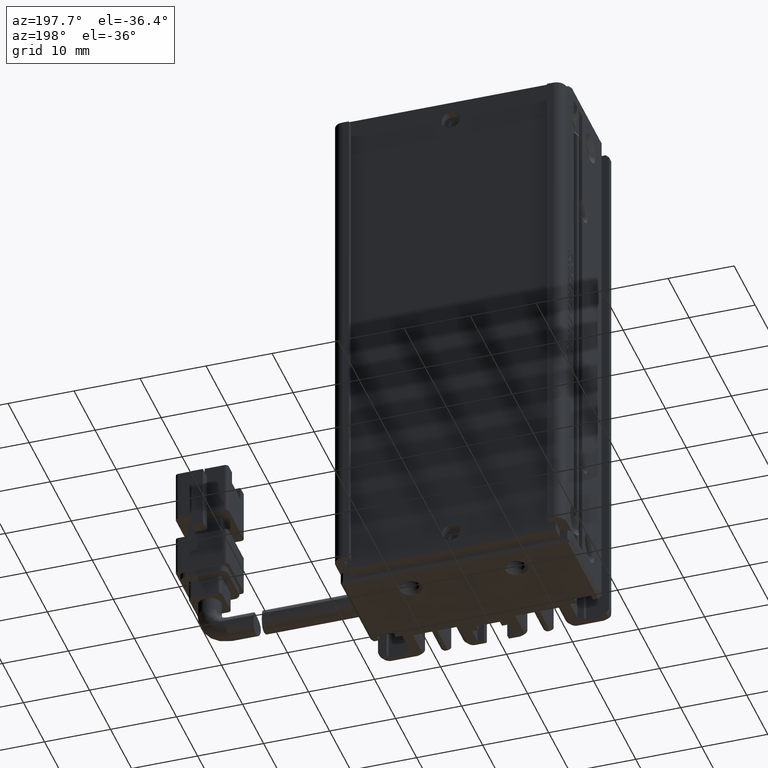
[diagram: clean part render]
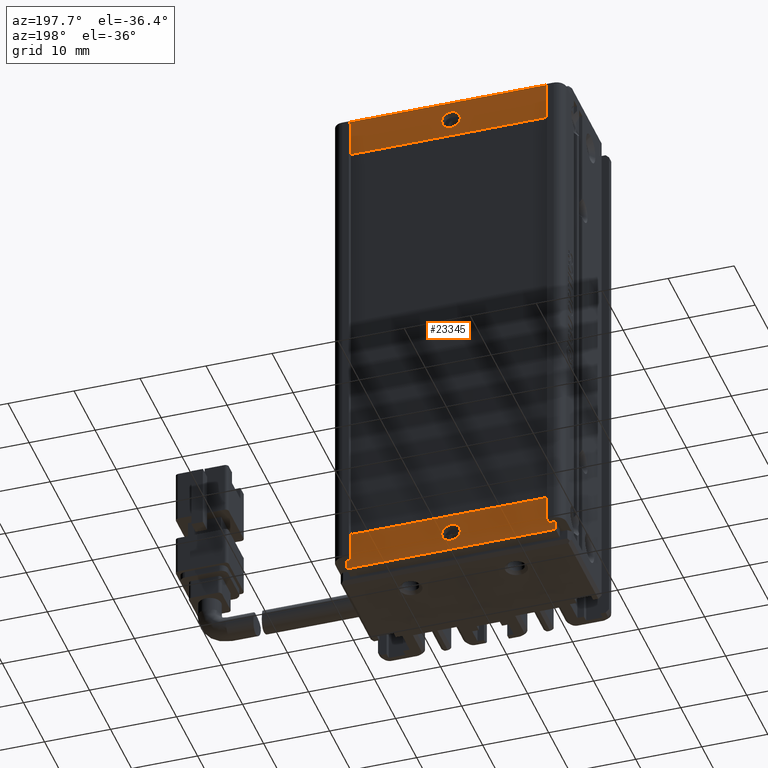
[diagram: same view with one face highlighted and labeled with its STEP entity id]
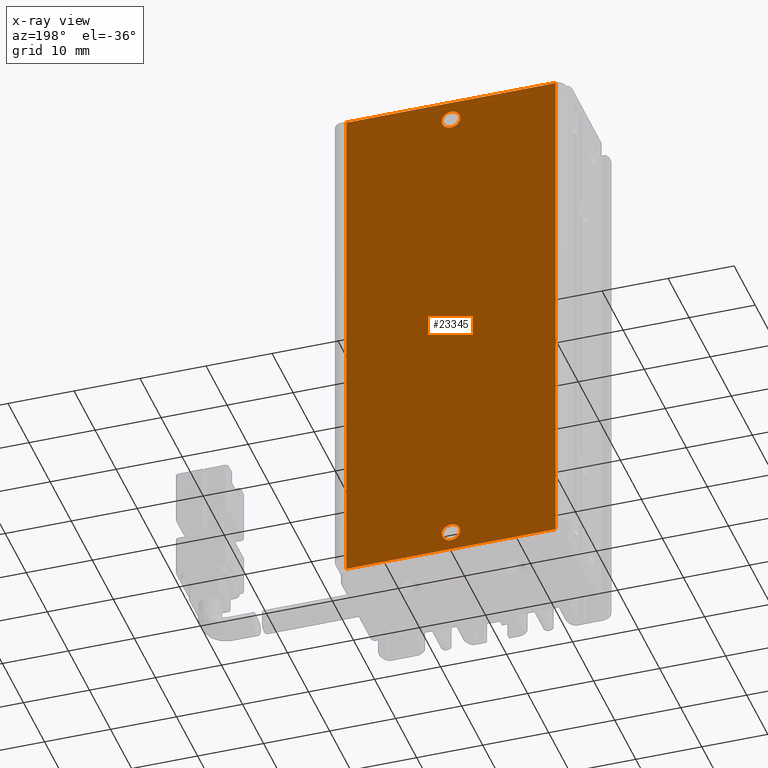
[diagram: x-ray of the same camera — body ghosted, the highlighted face saturated]
A machine part, auxiliary view. The second image highlights one B-rep face of the part: STEP entity #23345.
The next image is the same camera in x-ray: the body ghosted, the highlighted face saturated — about 0% of this face is hidden behind the body in this view.
In plain terms, the highlighted planar face has unit normal (0, 1, 0).
Its self-contained STEP definition (entity closure, byte-faithful):
#330 = CARTESIAN_POINT ( 'NONE',  ( 25.07537974683541600, 33.49073232304837700, -155.0000000000000300 ) ) ;
#935 = DIRECTION ( 'NONE',  ( -1.631319816340922500E-017, -0.0000000000000000000, 1.000000000000000000 ) ) ;
#1281 = CARTESIAN_POINT ( 'NONE',  ( 40.92537974683541100, 33.49073232304837700, -76.60000000000000900 ) ) ;
#1443 = ORIENTED_EDGE ( 'NONE', *, *, #5145, .T. ) ;
#2185 = ORIENTED_EDGE ( 'NONE', *, *, #14618, .T. ) ;
#2336 = AXIS2_PLACEMENT_3D ( 'NONE', #26504, #23533, #32022 ) ;
#2883 = DIRECTION ( 'NONE',  ( 0.0000000000000000000, 0.0000000000000000000, 1.000000000000000000 ) ) ;
#3335 = LINE ( 'NONE', #22120, #29895 ) ;
#3593 = VERTEX_POINT ( 'NONE', #7690 ) ;
#4045 = FACE_BOUND ( 'NONE', #15093, .T. ) ;
#4791 = VECTOR ( 'NONE', #5916, 1000.000000000000000 ) ;
#5145 = EDGE_CURVE ( 'NONE', #17059, #15080, #6583, .T. ) ;
#5250 = CARTESIAN_POINT ( 'NONE',  ( 25.07537974683541600, 33.49073232304837700, -155.0000000000000300 ) ) ;
#5355 = EDGE_CURVE ( 'NONE', #38021, #24096, #28516, .T. ) ;
#5431 = LINE ( 'NONE', #7168, #10886 ) ;
#5916 = DIRECTION ( 'NONE',  ( 5.204170427930418800E-017, -0.0000000000000000000, -1.000000000000000000 ) ) ;
#6583 = CIRCLE ( 'NONE', #23786, 1.400000000000012300 ) ;
#7168 = CARTESIAN_POINT ( 'NONE',  ( 25.07537974683541600, 33.49073232304837700, -75.00000000000001400 ) ) ;
#7454 = ORIENTED_EDGE ( 'NONE', *, *, #28423, .T. ) ;
#7690 = CARTESIAN_POINT ( 'NONE',  ( 40.92537974683541100, 33.49073232304837700, -79.40000000000000600 ) ) ;
#8518 = CARTESIAN_POINT ( 'NONE',  ( 56.77537974683541200, 33.49073232304837700, -75.00000000000001400 ) ) ;
#8586 = CARTESIAN_POINT ( 'NONE',  ( 40.92537974683541100, 33.49073232304837700, -78.00000000000001400 ) ) ;
#9674 = DIRECTION ( 'NONE',  ( -0.0000000000000000000, -1.000000000000000000, -0.0000000000000000000 ) ) ;
#10886 = VECTOR ( 'NONE', #935, 1000.000000000000000 ) ;
#11278 = CARTESIAN_POINT ( 'NONE',  ( 56.77537974683541200, 33.49073232304837700, -75.00000000000001400 ) ) ;
#12044 = ORIENTED_EDGE ( 'NONE', *, *, #5355, .T. ) ;
#12277 = DIRECTION ( 'NONE',  ( 0.0000000000000000000, 0.0000000000000000000, 1.000000000000000000 ) ) ;
#12505 = CARTESIAN_POINT ( 'NONE',  ( 40.92537974683541800, 33.49073232304837700, -153.4000000000000300 ) ) ;
#12824 = ORIENTED_EDGE ( 'NONE', *, *, #24520, .T. ) ;
#13050 = DIRECTION ( 'NONE',  ( 1.000000000000000000, 0.0000000000000000000, 1.387778780781445400E-016 ) ) ;
#13790 = ORIENTED_EDGE ( 'NONE', *, *, #14248, .T. ) ;
#14248 = EDGE_CURVE ( 'NONE', #21273, #3593, #18898, .T. ) ;
#14531 = DIRECTION ( 'NONE',  ( -1.387778780781445400E-016, 0.0000000000000000000, 1.000000000000000000 ) ) ;
#14549 = FACE_OUTER_BOUND ( 'NONE', #31821, .T. ) ;
#14594 = CARTESIAN_POINT ( 'NONE',  ( 40.92537974683541800, 33.49073232304837700, -150.6000000000000200 ) ) ;
#14618 = EDGE_CURVE ( 'NONE', #30730, #35535, #3335, .T. ) ;
#14655 = PLANE ( 'NONE',  #17272 ) ;
#15080 = VERTEX_POINT ( 'NONE', #12505 ) ;
#15093 = EDGE_LOOP ( 'NONE', ( #13790, #36008 ) ) ;
#17015 = EDGE_CURVE ( 'NONE', #3593, #21273, #30860, .T. ) ;
#17059 = VERTEX_POINT ( 'NONE', #14594 ) ;
#17272 = AXIS2_PLACEMENT_3D ( 'NONE', #8518, #37677, #14531 ) ;
#17458 = EDGE_CURVE ( 'NONE', #15080, #17059, #19299, .T. ) ;
#18669 = AXIS2_PLACEMENT_3D ( 'NONE', #8586, #23179, #29353 ) ;
#18898 = CIRCLE ( 'NONE', #23689, 1.399999999999998600 ) ;
#18922 = LINE ( 'NONE', #23422, #4791 ) ;
#19299 = CIRCLE ( 'NONE', #2336, 1.400000000000012300 ) ;
#19956 = DIRECTION ( 'NONE',  ( -0.0000000000000000000, -1.000000000000000000, -0.0000000000000000000 ) ) ;
#20697 = VECTOR ( 'NONE', #37170, 1000.000000000000000 ) ;
#21273 = VERTEX_POINT ( 'NONE', #1281 ) ;
#21622 = CARTESIAN_POINT ( 'NONE',  ( 25.07537974683541600, 33.49073232304837700, -75.00000000000001400 ) ) ;
#22120 = CARTESIAN_POINT ( 'NONE',  ( 25.07537974683541600, 33.49073232304837700, -75.00000000000001400 ) ) ;
#23179 = DIRECTION ( 'NONE',  ( -0.0000000000000000000, -1.000000000000000000, -0.0000000000000000000 ) ) ;
#23345 = ADVANCED_FACE ( 'NONE', ( #14549, #4045, #37998 ), #14655, .T. ) ;
#23422 = CARTESIAN_POINT ( 'NONE',  ( 56.77537974683541200, 33.49073232304837700, -75.00000000000001400 ) ) ;
#23533 = DIRECTION ( 'NONE',  ( -0.0000000000000000000, -1.000000000000000000, -0.0000000000000000000 ) ) ;
#23689 = AXIS2_PLACEMENT_3D ( 'NONE', #29099, #19956, #2883 ) ;
#23786 = AXIS2_PLACEMENT_3D ( 'NONE', #23914, #9674, #12277 ) ;
#23914 = CARTESIAN_POINT ( 'NONE',  ( 40.92537974683541800, 33.49073232304837700, -152.0000000000000300 ) ) ;
#24096 = VERTEX_POINT ( 'NONE', #330 ) ;
#24520 = EDGE_CURVE ( 'NONE', #35535, #38021, #18922, .T. ) ;
#25840 = EDGE_LOOP ( 'NONE', ( #1443, #29678 ) ) ;
#26504 = CARTESIAN_POINT ( 'NONE',  ( 40.92537974683541800, 33.49073232304837700, -152.0000000000000300 ) ) ;
#28423 = EDGE_CURVE ( 'NONE', #24096, #30730, #5431, .T. ) ;
#28516 = LINE ( 'NONE', #5250, #20697 ) ;
#29099 = CARTESIAN_POINT ( 'NONE',  ( 40.92537974683541100, 33.49073232304837700, -78.00000000000001400 ) ) ;
#29353 = DIRECTION ( 'NONE',  ( 0.0000000000000000000, 0.0000000000000000000, 1.000000000000000000 ) ) ;
#29678 = ORIENTED_EDGE ( 'NONE', *, *, #17458, .T. ) ;
#29895 = VECTOR ( 'NONE', #13050, 1000.000000000000000 ) ;
#30730 = VERTEX_POINT ( 'NONE', #21622 ) ;
#30860 = CIRCLE ( 'NONE', #18669, 1.399999999999998600 ) ;
#31821 = EDGE_LOOP ( 'NONE', ( #12044, #7454, #2185, #12824 ) ) ;
#32022 = DIRECTION ( 'NONE',  ( 0.0000000000000000000, 0.0000000000000000000, 1.000000000000000000 ) ) ;
#34484 = CARTESIAN_POINT ( 'NONE',  ( 56.77537974683541900, 33.49073232304837700, -155.0000000000000300 ) ) ;
#35535 = VERTEX_POINT ( 'NONE', #11278 ) ;
#36008 = ORIENTED_EDGE ( 'NONE', *, *, #17015, .T. ) ;
#37170 = DIRECTION ( 'NONE',  ( -1.000000000000000000, -0.0000000000000000000, -1.387778780781445400E-016 ) ) ;
#37677 = DIRECTION ( 'NONE',  ( 0.0000000000000000000, 1.000000000000000000, 0.0000000000000000000 ) ) ;
#37998 = FACE_BOUND ( 'NONE', #25840, .T. ) ;
#38021 = VERTEX_POINT ( 'NONE', #34484 ) ;